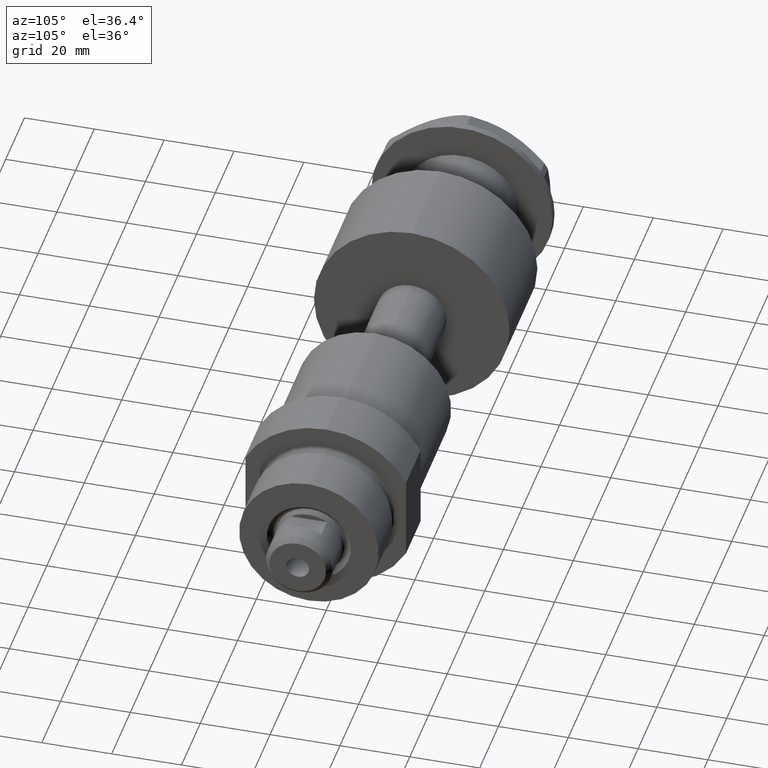
[diagram: clean part render]
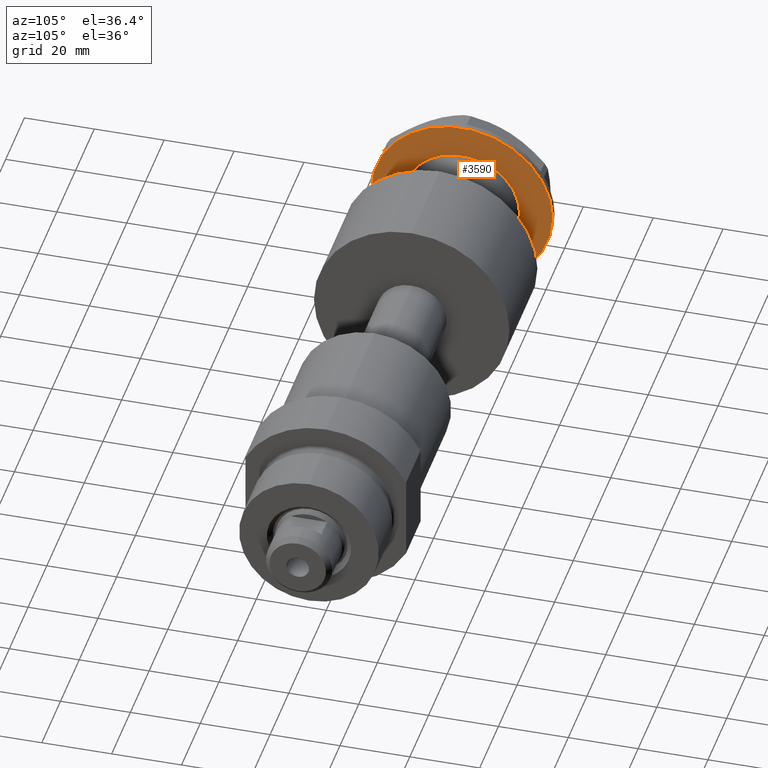
[diagram: same view with one face highlighted and labeled with its STEP entity id]
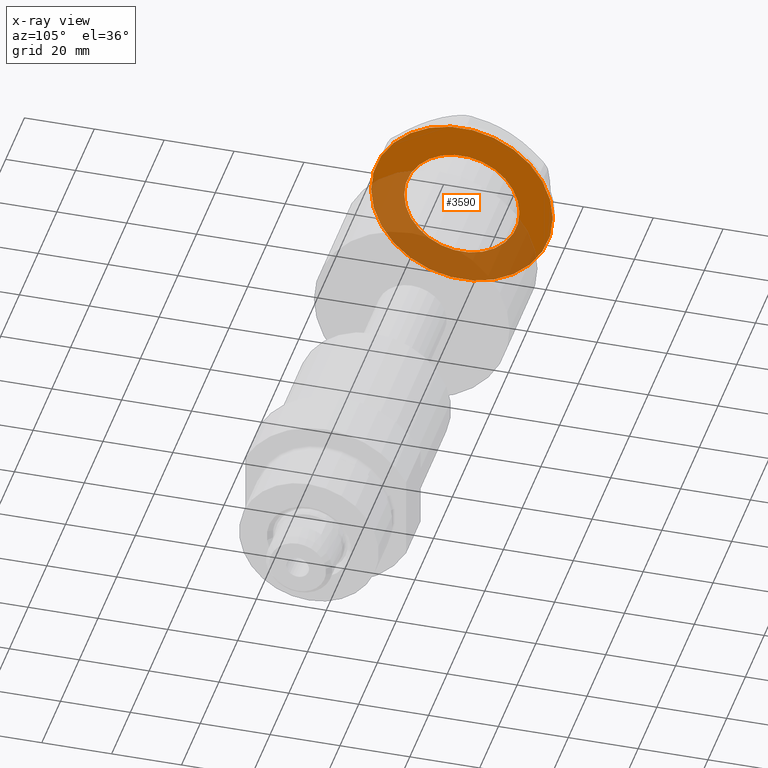
[diagram: x-ray of the same camera — body ghosted, the highlighted face saturated]
A machine part, auxiliary view. The second image highlights one B-rep face of the part: STEP entity #3590.
The next image is the same camera in x-ray: the body ghosted, the highlighted face saturated — about 48% of this face is hidden behind the body in this view.
In plain terms, the highlighted planar face has unit normal (1, 0, -0).
Its self-contained STEP definition (entity closure, byte-faithful):
#17 = ORIENTED_EDGE ( 'NONE', *, *, #3242, .F. ) ;
#45 = CIRCLE ( 'NONE', #3016, 26.00000000000000355 ) ;
#48 = VERTEX_POINT ( 'NONE', #1894 ) ;
#123 = FACE_OUTER_BOUND ( 'NONE', #895, .T. ) ;
#254 = EDGE_CURVE ( 'NONE', #1739, #1451, #45, .T. ) ;
#301 = CARTESIAN_POINT ( 'NONE',  ( 0.000000000000000000, 0.000000000000000000, -2.000000000000000000 ) ) ;
#344 = AXIS2_PLACEMENT_3D ( 'NONE', #1019, #2648, #1822 ) ;
#414 = DIRECTION ( 'NONE',  ( 0.000000000000000000, 0.000000000000000000, -1.000000000000000000 ) ) ;
#432 = DIRECTION ( 'NONE',  ( -1.000000000000000000, 0.000000000000000000, 0.000000000000000000 ) ) ;
#536 = VERTEX_POINT ( 'NONE', #809 ) ;
#679 = CARTESIAN_POINT ( 'NONE',  ( 0.000000000000000000, 0.000000000000000000, -2.000000000000000000 ) ) ;
#785 = EDGE_CURVE ( 'NONE', #1451, #1739, #1405, .T. ) ;
#809 = CARTESIAN_POINT ( 'NONE',  ( -16.50000000000000000, 2.020667218593133100E-15, -2.000000000000000000 ) ) ;
#895 = EDGE_LOOP ( 'NONE', ( #2349, #1544 ) ) ;
#920 = ORIENTED_EDGE ( 'NONE', *, *, #1945, .F. ) ;
#1019 = CARTESIAN_POINT ( 'NONE',  ( 0.000000000000000000, 0.000000000000000000, -2.000000000000000000 ) ) ;
#1061 = CARTESIAN_POINT ( 'NONE',  ( 26.00000000000000355, 0.000000000000000000, -2.000000000000000000 ) ) ;
#1219 = CARTESIAN_POINT ( 'NONE',  ( 0.000000000000000000, 0.000000000000000000, -2.000000000000000000 ) ) ;
#1255 = DIRECTION ( 'NONE',  ( -1.000000000000000000, 0.000000000000000000, 0.000000000000000000 ) ) ;
#1382 = DIRECTION ( 'NONE',  ( 0.000000000000000000, 0.000000000000000000, -1.000000000000000000 ) ) ;
#1405 = CIRCLE ( 'NONE', #2502, 26.00000000000000355 ) ;
#1451 = VERTEX_POINT ( 'NONE', #1061 ) ;
#1544 = ORIENTED_EDGE ( 'NONE', *, *, #254, .T. ) ;
#1739 = VERTEX_POINT ( 'NONE', #2052 ) ;
#1790 = CARTESIAN_POINT ( 'NONE',  ( 0.000000000000000000, 0.000000000000000000, -2.000000000000000000 ) ) ;
#1822 = DIRECTION ( 'NONE',  ( -1.000000000000000000, 0.000000000000000000, 0.000000000000000000 ) ) ;
#1829 = DIRECTION ( 'NONE',  ( 0.000000000000000000, 0.000000000000000000, -1.000000000000000000 ) ) ;
#1866 = AXIS2_PLACEMENT_3D ( 'NONE', #301, #1382, #2484 ) ;
#1894 = CARTESIAN_POINT ( 'NONE',  ( 16.50000000000000000, 0.000000000000000000, -2.000000000000000000 ) ) ;
#1945 = EDGE_CURVE ( 'NONE', #48, #536, #2238, .T. ) ;
#2052 = CARTESIAN_POINT ( 'NONE',  ( -26.00000000000000355, 3.184081677783118585E-15, -2.000000000000000000 ) ) ;
#2238 = CIRCLE ( 'NONE', #344, 16.50000000000000000 ) ;
#2298 = FACE_BOUND ( 'NONE', #2827, .T. ) ;
#2349 = ORIENTED_EDGE ( 'NONE', *, *, #785, .T. ) ;
#2355 = DIRECTION ( 'NONE',  ( 0.000000000000000000, 0.000000000000000000, -1.000000000000000000 ) ) ;
#2480 = AXIS2_PLACEMENT_3D ( 'NONE', #1219, #2355, #2551 ) ;
#2484 = DIRECTION ( 'NONE',  ( -1.000000000000000000, 0.000000000000000000, 0.000000000000000000 ) ) ;
#2502 = AXIS2_PLACEMENT_3D ( 'NONE', #679, #414, #1255 ) ;
#2551 = DIRECTION ( 'NONE',  ( -1.000000000000000000, 0.000000000000000000, -0.000000000000000000 ) ) ;
#2648 = DIRECTION ( 'NONE',  ( 0.000000000000000000, 0.000000000000000000, -1.000000000000000000 ) ) ;
#2827 = EDGE_LOOP ( 'NONE', ( #920, #17 ) ) ;
#3016 = AXIS2_PLACEMENT_3D ( 'NONE', #1790, #1829, #432 ) ;
#3063 = CIRCLE ( 'NONE', #1866, 16.50000000000000000 ) ;
#3242 = EDGE_CURVE ( 'NONE', #536, #48, #3063, .T. ) ;
#3402 = PLANE ( 'NONE',  #2480 ) ;
#3590 = ADVANCED_FACE ( 'NONE', ( #2298, #123 ), #3402, .T. ) ;